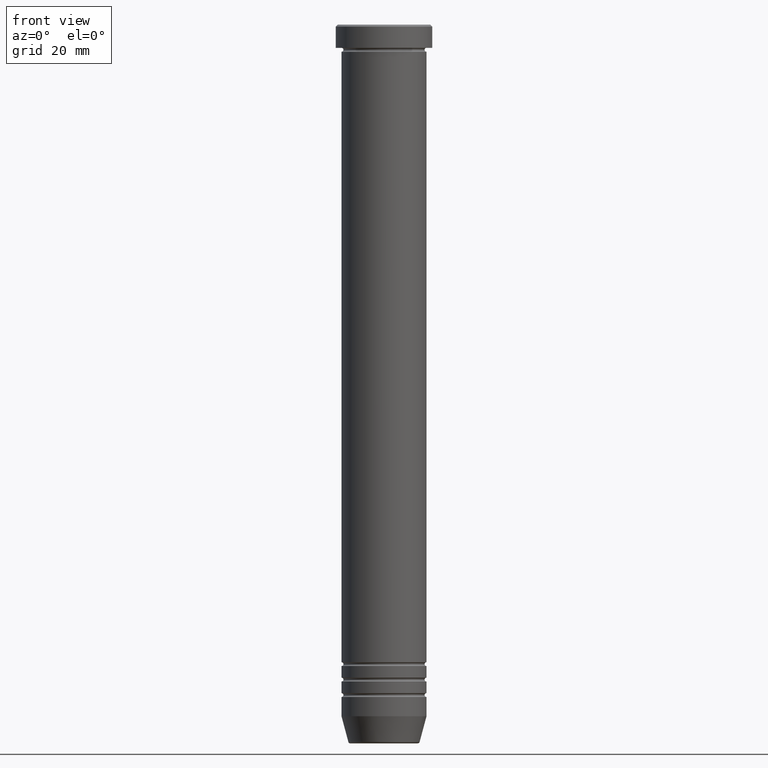
[diagram: clean part render]
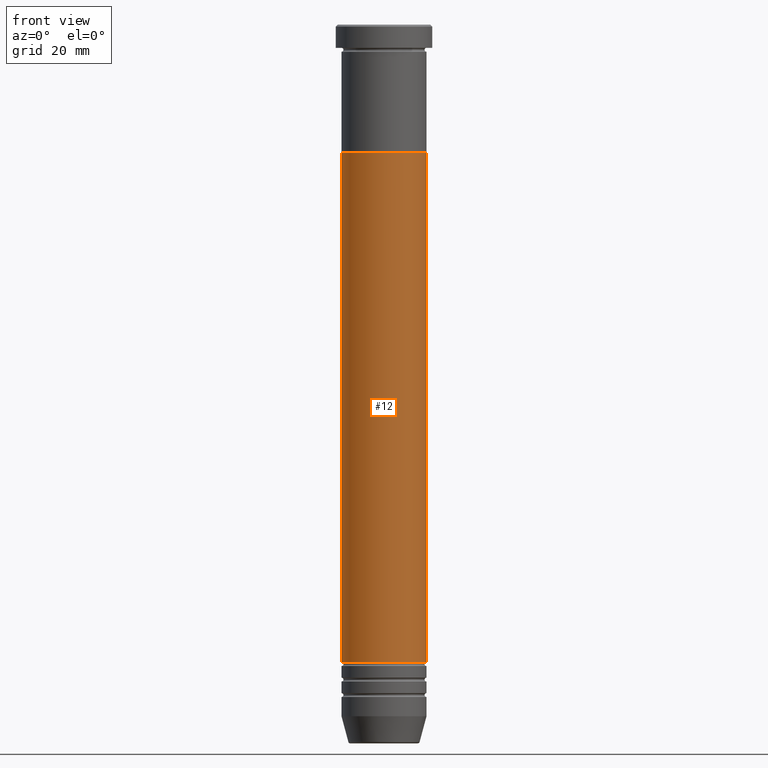
[diagram: same view with one face highlighted and labeled with its STEP entity id]
A machine part, front view. The second image highlights one B-rep face of the part: STEP entity #12.
In plain terms, the highlighted cylindrical surface (partial cylindrical patch) has radius 11 mm, axis along (-0, -0, 1).
Its self-contained STEP definition (entity closure, byte-faithful):
#1 = EDGE_LOOP ( 'NONE', ( #259, #39, #336, #892 ) ) ;
#12 = ADVANCED_FACE ( 'NONE', ( #38 ), #546, .T. ) ;
#38 = FACE_OUTER_BOUND ( 'NONE', #1, .T. ) ;
#39 = ORIENTED_EDGE ( 'NONE', *, *, #768, .T. ) ;
#61 = DIRECTION ( 'NONE',  ( 1.000000000000000000, 0.000000000000000000, 0.000000000000000000 ) ) ;
#66 = VERTEX_POINT ( 'NONE', #674 ) ;
#187 = DIRECTION ( 'NONE',  ( -0.000000000000000000, -0.000000000000000000, 1.000000000000000000 ) ) ;
#259 = ORIENTED_EDGE ( 'NONE', *, *, #605, .F. ) ;
#271 = CIRCLE ( 'NONE', #874, 10.99999999999999467 ) ;
#333 = CARTESIAN_POINT ( 'NONE',  ( 0.000000000000000000, 0.000000000000000000, 0.000000000000000000 ) ) ;
#336 = ORIENTED_EDGE ( 'NONE', *, *, #786, .T. ) ;
#353 = DIRECTION ( 'NONE',  ( -0.000000000000000000, -0.000000000000000000, 1.000000000000000000 ) ) ;
#357 = AXIS2_PLACEMENT_3D ( 'NONE', #809, #636, #459 ) ;
#364 = CARTESIAN_POINT ( 'NONE',  ( 10.99999999999999645, 0.000000000000000000, 0.000000000000000000 ) ) ;
#391 = DIRECTION ( 'NONE',  ( -0.000000000000000000, -0.000000000000000000, 1.000000000000000000 ) ) ;
#441 = LINE ( 'NONE', #785, #816 ) ;
#459 = DIRECTION ( 'NONE',  ( 1.000000000000000000, 0.000000000000000000, 0.000000000000000000 ) ) ;
#539 = CIRCLE ( 'NONE', #357, 11.00000000000000000 ) ;
#546 = CYLINDRICAL_SURFACE ( 'NONE', #1102, 10.99999999999999645 ) ;
#556 = DIRECTION ( 'NONE',  ( 1.000000000000000000, 0.000000000000000000, 0.000000000000000000 ) ) ;
#605 = EDGE_CURVE ( 'NONE', #994, #814, #441, .T. ) ;
#636 = DIRECTION ( 'NONE',  ( -0.000000000000000000, -0.000000000000000000, 1.000000000000000000 ) ) ;
#674 = CARTESIAN_POINT ( 'NONE',  ( 10.99999999999999467, 0.000000000000000000, -165.0000000000000000 ) ) ;
#735 = CARTESIAN_POINT ( 'NONE',  ( 0.000000000000000000, 0.000000000000000000, -165.0000000000000000 ) ) ;
#752 = EDGE_CURVE ( 'NONE', #814, #961, #539, .T. ) ;
#768 = EDGE_CURVE ( 'NONE', #994, #66, #271, .T. ) ;
#785 = CARTESIAN_POINT ( 'NONE',  ( -10.99999999999999645, 1.347111479062088010E-15, 0.000000000000000000 ) ) ;
#786 = EDGE_CURVE ( 'NONE', #66, #961, #912, .T. ) ;
#803 = CARTESIAN_POINT ( 'NONE',  ( -10.99999999999999822, 1.347111479062088405E-15, -33.00000000000000000 ) ) ;
#805 = CARTESIAN_POINT ( 'NONE',  ( 11.00000000000000000, 0.000000000000000000, -33.00000000000000000 ) ) ;
#809 = CARTESIAN_POINT ( 'NONE',  ( 0.000000000000000000, 0.000000000000000000, -33.00000000000000000 ) ) ;
#814 = VERTEX_POINT ( 'NONE', #803 ) ;
#816 = VECTOR ( 'NONE', #353, 1000.000000000000000 ) ;
#874 = AXIS2_PLACEMENT_3D ( 'NONE', #735, #391, #556 ) ;
#892 = ORIENTED_EDGE ( 'NONE', *, *, #752, .F. ) ;
#912 = LINE ( 'NONE', #364, #1009 ) ;
#961 = VERTEX_POINT ( 'NONE', #805 ) ;
#994 = VERTEX_POINT ( 'NONE', #1093 ) ;
#1009 = VECTOR ( 'NONE', #187, 1000.000000000000000 ) ;
#1039 = DIRECTION ( 'NONE',  ( -0.000000000000000000, -0.000000000000000000, 1.000000000000000000 ) ) ;
#1093 = CARTESIAN_POINT ( 'NONE',  ( -10.99999999999999467, 1.347111479062087813E-15, -165.0000000000000000 ) ) ;
#1102 = AXIS2_PLACEMENT_3D ( 'NONE', #333, #1039, #61 ) ;